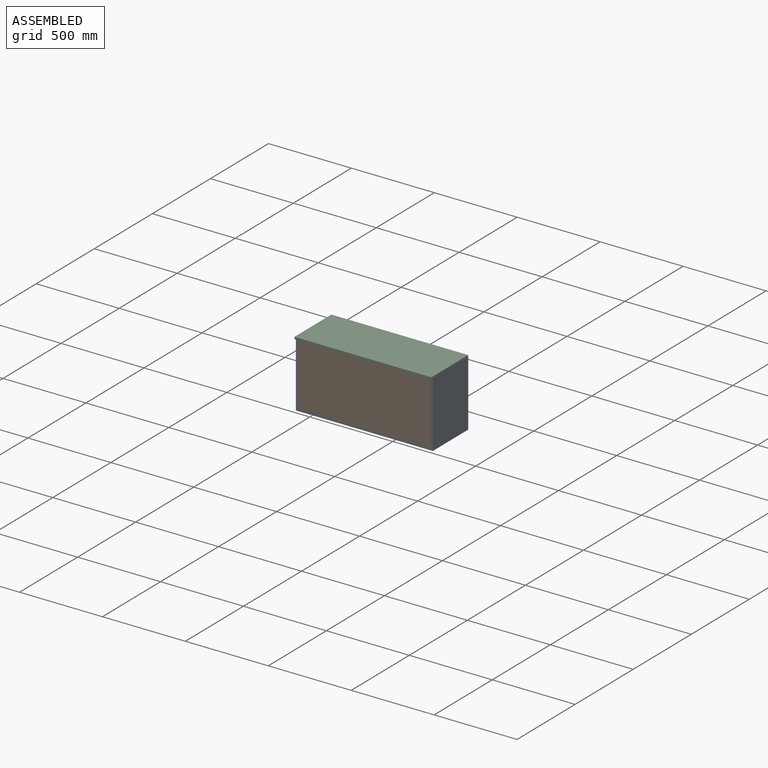
[diagram: assembled view]
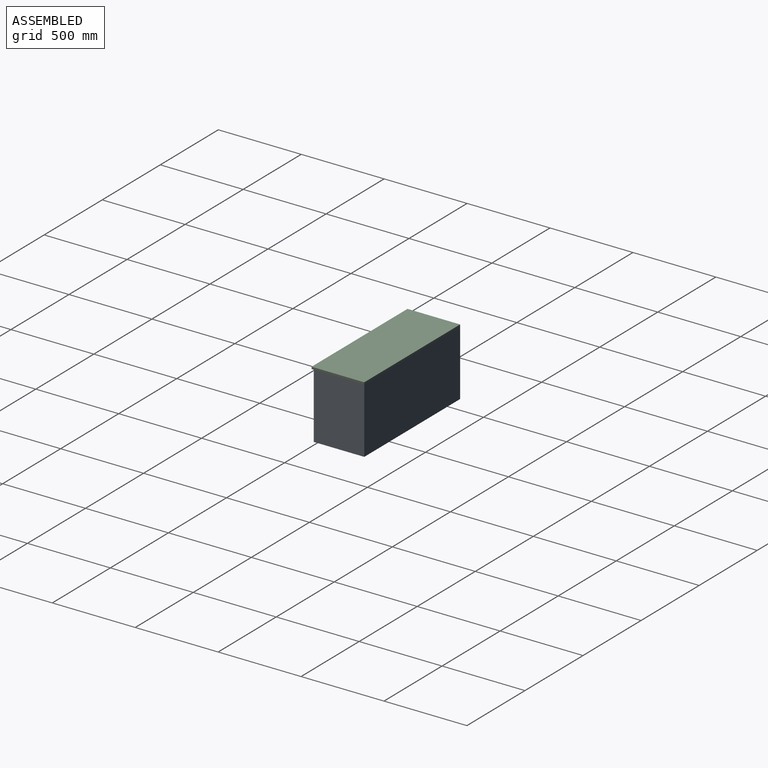
[diagram: assembled view, second angle]
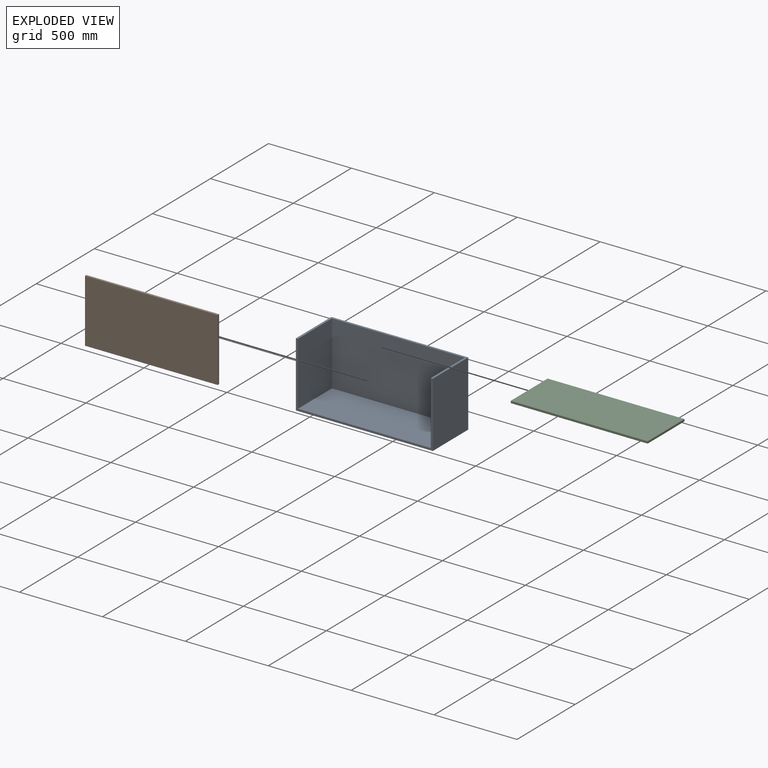
[diagram: exploded view]
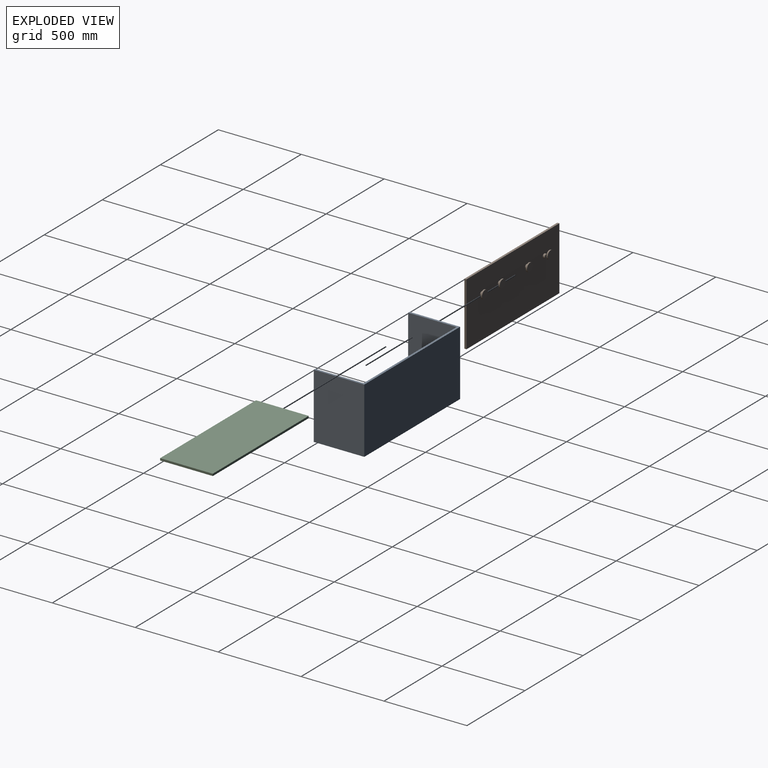
[diagram: exploded view, second angle]
ASSEMBLY  parts=3 mates=8
PART A: 10 faces, bbox 825.5x304.8x393.7 mm
  f0: plane 800.1x292.1mm, normal (0,0,1), area 233709.2mm2, adj f2,f6,f7,f8
  f1: plane 393.7x304.8mm, normal (-1,0,0), area 119999.8mm2, adj f2,f4,f5,f9
  f2: plane 825.5x393.7mm, normal (0,-1,0), area 20161.2mm2, adj f0,f1,f3,f5,f6,f8,f9
  f3: plane 393.7x304.8mm, normal (1,0,0), area 119999.8mm2, adj f2,f4,f5,f9
  f4: plane 825.5x393.7mm, normal (0,1,0), area 324999.3mm2, adj f1,f3,f5,f9
  f5: plane 825.5x304.8mm, normal (0,0,-1), area 251612.4mm2, adj f1,f2,f3,f4
  f6: plane 381x292.1mm, normal (1,0,0), area 111290.1mm2, adj f0,f2,f7,f9
  f7: plane 800.1x381mm, normal (0,-1,0), area 304838.1mm2, adj f0,f6,f8,f9
  f8: plane 381x292.1mm, normal (-1,0,0), area 111290.1mm2, adj f0,f2,f7,f9
  f9: plane 825.5x304.8mm, normal (0,0,1), area 17903.2mm2, adj f1,f2,f3,f4,f6,f7,f8
PART B: 23 faces, bbox 800.1x33x381 mm
  f0: cylinder r=12.7mm len=25.4mm, axis (0,1,0), area 1013.4mm2, adj f3,f8
  f1: cylinder r=25.4mm len=50.8mm, axis (0,1,0), area 1216.1mm2, adj f2,f3
  f2: plane 50.8x50.8mm, normal (0,-1,0), area 2026.8mm2, adj f1
  f3: plane 50.8x50.8mm, normal (0,1,0), area 1520.1mm2, adj f0,f1
  f4: plane 381x12.7mm, normal (-1,0,0), area 4838.7mm2, adj f5,f7,f8,f9
  f5: plane 800.1x12.7mm, normal (0,0,-1), area 10161.3mm2, adj f4,f6,f8,f9
  f6: plane 381x12.7mm, normal (1,0,0), area 4838.7mm2, adj f5,f7,f8,f9
  f7: plane 800.1x12.7mm, normal (0,0,1), area 10161.3mm2, adj f4,f6,f8,f9
  f8: plane 800.1x381mm, normal (0,-1,0), area 302811.3mm2, adj f0,f4,f5,f6,f7,f13,f14,f21
  f9: plane 800.1x381mm, normal (0,1,0), area 304838.1mm2, adj f4,f5,f6,f7
  f10: cylinder r=25.4mm len=50.8mm, axis (0,1,0), area 1216.1mm2, adj f11,f12
  f11: plane 50.8x50.8mm, normal (0,-1,0), area 2026.8mm2, adj f10
  f12: plane 50.8x50.8mm, normal (0,1,0), area 1520.1mm2, adj f10,f13
  f13: cylinder r=12.7mm len=25.4mm, axis (0,1,0), area 1013.4mm2, adj f8,f12
  f14: cylinder r=12.7mm len=25.4mm, axis (0,1,0), area 1013.4mm2, adj f8,f17
  f15: cylinder r=25.4mm len=50.8mm, axis (0,1,0), area 1216.1mm2, adj f16,f17
  f16: plane 50.8x50.8mm, normal (0,-1,0), area 2026.8mm2, adj f15
  f17: plane 50.8x50.8mm, normal (0,1,0), area 1520.1mm2, adj f14,f15
  f18: cylinder r=25.4mm len=50.8mm, axis (0,1,0), area 1216.1mm2, adj f19,f20,f22
  f19: plane 50.8x50.8mm, normal (0,-1,0), area 2026.8mm2, adj f18
  f20: plane 50.8x47.63mm, normal (0,1,0), area 1800.5mm2, adj f18,f21
  f21: cylinder r=12.7mm len=25.4mm, axis (0,1,0), area 1013.4mm2, adj f8,f20,f22
  f22: plane 25.4x15.88mm, normal (0,-1,0), area 280.4mm2, adj f18,f21
PART C: 6 faces, bbox 825.5x317.5x12.7 mm
  f0: plane 317.5x12.7mm, normal (-1,0,0), area 4032.3mm2, adj f1,f3,f4,f5
  f1: plane 825.5x12.7mm, normal (0,-1,0), area 10483.8mm2, adj f0,f2,f4,f5
  f2: plane 317.5x12.7mm, normal (1,0,0), area 4032.3mm2, adj f1,f3,f4,f5
  f3: plane 825.5x12.7mm, normal (0,1,0), area 10483.9mm2, adj f0,f2,f4,f5
  f4: plane 825.5x317.5mm, normal (0,0,1), area 262096.3mm2, adj f0,f1,f2,f3
  f5: plane 825.5x317.5mm, normal (0,0,-1), area 262096.3mm2, adj f0,f1,f2,f3
PLACE A t=(-1081.6,-503.19,-69.11)mm
PLACE B rot(axis=(0,0,1),180deg) t=(-268.8,-503.19,-56.41)mm
PLACE C t=(-1081.6,-515.89,324.59)mm
MATE planar C.f0 <-> A.f1  axis (-1,0,0) through (-1081.6,-357.14,330.94)mm
MATE parallel C.f0 <-> A.f1  axis (-1,0,0) through (-1081.6,-357.14,330.94)mm
MATE planar A.f4 <-> C.f3  axis (0,1,0) through (-668.85,-198.39,127.74)mm
MATE planar A.f8 <-> B.f4  axis (-1,0,0) through (-268.8,-357.14,134.09)mm
MATE planar A.f9 <-> B.f7  axis (0,0,1) through (-668.85,-267.89,324.59)mm
MATE planar C.f5 <-> A.f9  axis (0,0,-1) through (-668.85,-357.14,324.59)mm
MATE parallel C.f2 <-> A.f3  axis (1,0,0) through (-256.1,-357.14,330.94)mm
MATE planar B.f9 <-> A.f2  axis (0,-1,0) through (-668.85,-503.19,134.09)mm
